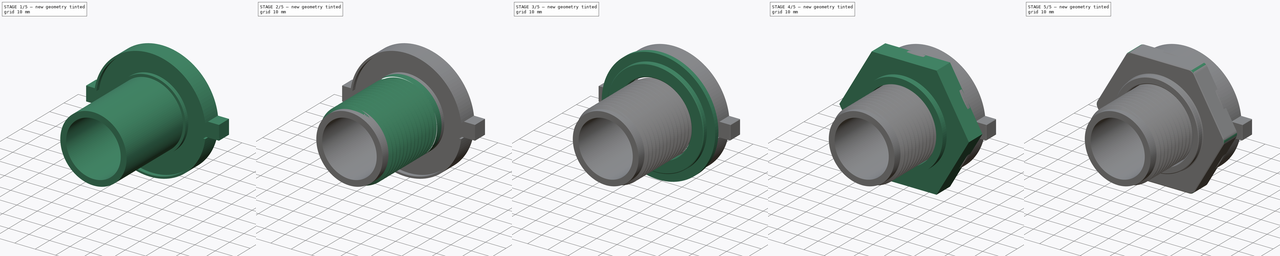
[diagram: build sequence overview — one tinted view per stage of 5, left to right]
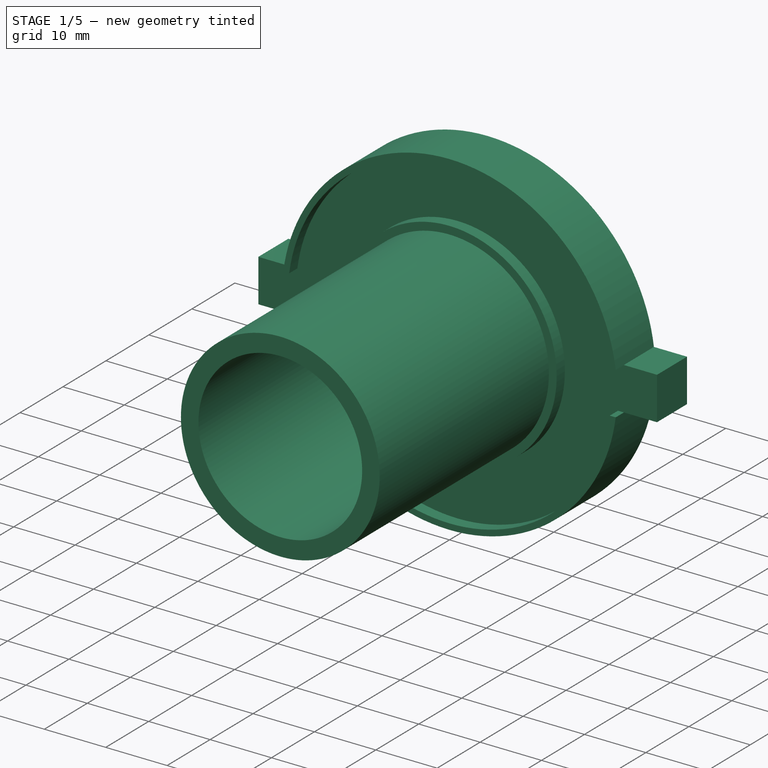
[diagram: stage 1 of 5 — iso view after this stage's code; geometry added in this stage tinted green]
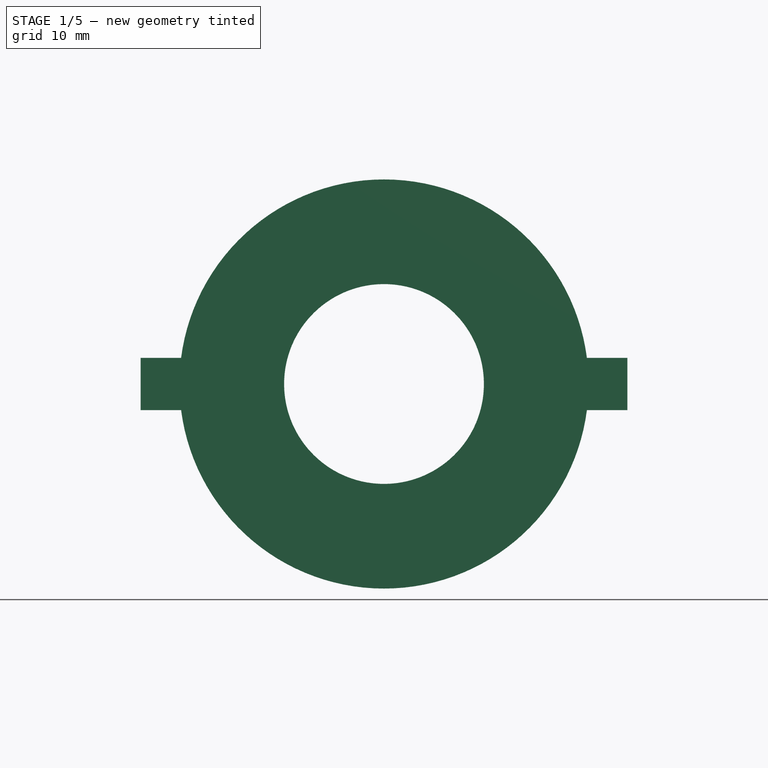
[diagram: stage 1 of 5 — front view after this stage's code; geometry added in this stage tinted green]
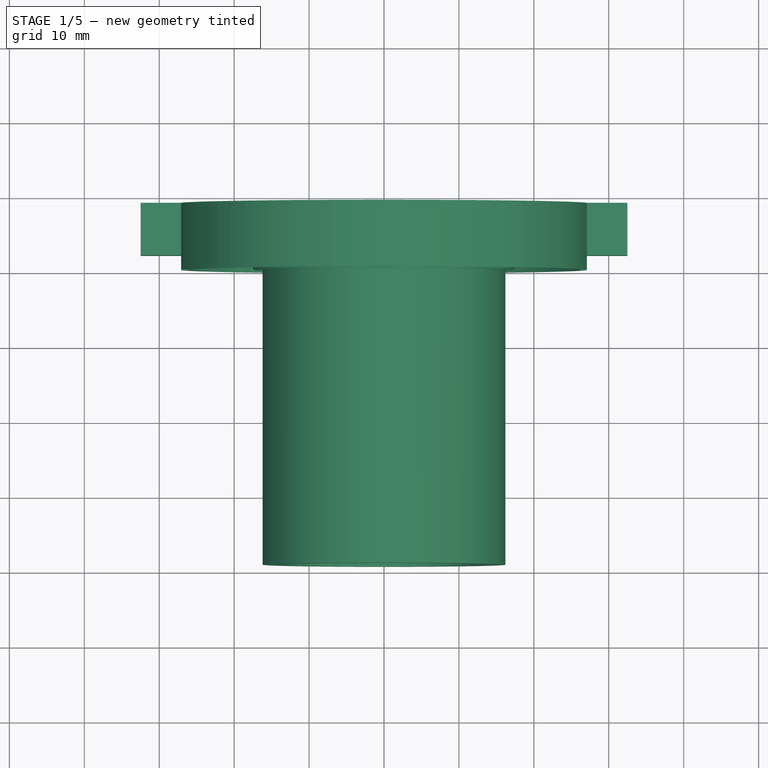
[diagram: stage 1 of 5 — top view after this stage's code; geometry added in this stage tinted green]
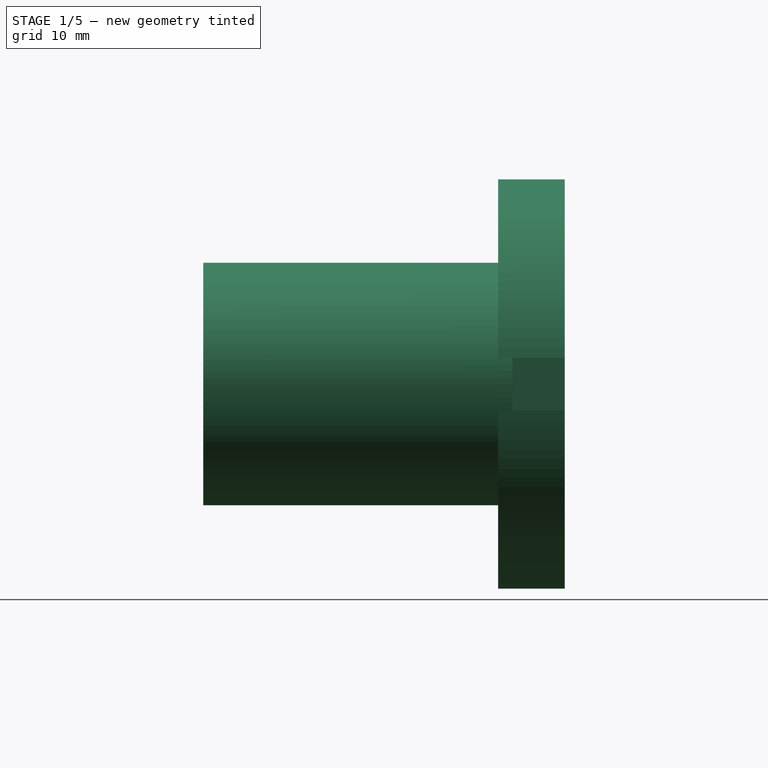
[diagram: stage 1 of 5 — right view after this stage's code; geometry added in this stage tinted green]
FCSTD DOCUMENT  (FreeCAD 0.20RUnknown)
Label: bulkhead-fitting
License: All rights reserved
LicenseURL: http://en.wikipedia.org/wiki/All_rights_reserved
objects: Sketcher::SketchObject×9, PartDesign::Pad×7, PartDesign::Chamfer×4, PartDesign::Body×4, PartDesign::AdditiveHelix×2, PartDesign::Pocket×1, PartDesign::Revolution×1, PartDesign::Fillet×1, App::Part×1
note: 45 computed .brp shape members not serialized (recipe doc carries the construction recipe); baked Part::Feature solids carry a one-line shape summary decoded from their .brp

FEATURE [Sketcher::SketchObject] Sketch
  FullyConstrained = true
  MapMode = 5
  Placement = pos=(0,0,0) rot=(1,0,0;1.5708rad)
  Support = -> [XZ_Plane]
  sketch-geometry (2):
    g0: Circle CenterX=0 CenterY=0 CenterZ=0 NormalX=0 NormalY=0 NormalZ=1 AngleXU=0 Radius=16.1925
    g1: Circle CenterX=0 CenterY=0 CenterZ=0 NormalX=0 NormalY=0 NormalZ=1 AngleXU=0 Radius=13.335
  constraints (4):
    c: Coincident(g0,g-1)
    c: Coincident(g1,g0)
    c: Diameter(g1) = 26.67
    c: Diameter(g0) = 32.385
FEATURE [PartDesign::Pad] Pad
  Direction = (0,-1,2e-16)
  Length = 39.37
  Length2 = 10
  Placement = pos=(0,0,0) rot=(1,0,0;1.5708rad)
  Profile = -> Sketch
  ReferenceAxis = -> Sketch [N_Axis]
  Type = 0
FEATURE [Sketcher::SketchObject] Sketch001
  FullyConstrained = true
  MapMode = 5
  Placement = pos=(0,0,0) rot=(-1,0,0;1.5708rad)
  Support = -> [Pad]
  sketch-geometry (14):
    g0: Circle CenterX=0 CenterY=0 CenterZ=0 NormalX=0 NormalY=0 NormalZ=1 AngleXU=0 Radius=27.305
    g1: Circle CenterX=0 CenterY=0 CenterZ=0 NormalX=0 NormalY=0 NormalZ=1 AngleXU=0 Radius=13.335
    g2: LineSegment StartX=27.0807 StartY=3.4925 StartZ=0 EndX=27.0807 EndY=-3.4925 EndZ=0
    g3: LineSegment StartX=27.0807 StartY=-3.4925 StartZ=0 EndX=32.4782 EndY=-3.4925 EndZ=0
    g4: LineSegment StartX=32.4782 StartY=-3.4925 StartZ=0 EndX=32.4782 EndY=3.4925 EndZ=0
    g5: LineSegment StartX=32.4782 StartY=3.4925 StartZ=0 EndX=27.0807 EndY=3.4925 EndZ=0
    g6: GeomPoint X=29.7795 Y=-8e-16 Z=0
    g7: LineSegment StartX=-27.0807 StartY=3.4925 StartZ=0 EndX=-27.0807 EndY=-3.4925 EndZ=0
    g8: LineSegment StartX=-27.0807 StartY=-3.4925 StartZ=0 EndX=-32.4782 EndY=-3.4925 EndZ=0
    g9: LineSegment StartX=-32.4782 StartY=-3.4925 StartZ=0 EndX=-32.4782 EndY=3.4925 EndZ=0
    g10: LineSegment StartX=-32.4782 StartY=3.4925 StartZ=0 EndX=-27.0807 EndY=3.4925 EndZ=0
    g11: GeomPoint X=-29.7795 Y=-4.7e-15 Z=0
    g12: ArcOfCircle CenterX=0 CenterY=0 CenterZ=0 NormalX=0 NormalY=0 NormalZ=1 AngleXU=0 Radius=27.305 StartAngle=0.128258 EndAngle=3.01333
    g13: ArcOfCircle CenterX=0 CenterY=0 CenterZ=0 NormalX=0 NormalY=0 NormalZ=1 AngleXU=0 Radius=27.305 StartAngle=3.26985 EndAngle=6.15493
  constraints (34):
    c: Coincident(g0,g-1)
    c: Diameter(g0) = 54.61
    c: Coincident(g1,g0)
    c: Diameter(g1) = 26.67
    c: Coincident(g2,g3)
    c: Coincident(g3,g4)
    c: Coincident(g4,g5)
    c: Coincident(g5,g2)
    c: Horizontal(g3)
    c: Horizontal(g5)
    c: Vertical(g2)
    c: Vertical(g4)
    c: Symmetric(g3,g2,g6)
    c: Coincident(g7,g8)
    c: Coincident(g8,g9)
    c: Coincident(g9,g10)
    c: Coincident(g10,g7)
    c: Horizontal(g8)
    c: Horizontal(g10)
    c: Vertical(g7)
    c: Vertical(g9)
    c: Symmetric(g8,g7,g11)
    c: Equal(g3,g8)
    c: Equal(g4,g7)
    c: Coincident(g12,g1)
    c: Coincident(g13,g1)
    c: Equal(g0,g12)
    c: Equal(g0,g13)
    c: Coincident(g12,g10)
    c: Coincident(g8,g13)
    c: Coincident(g5,g12)
    c: Coincident(g3,g13)
    c: DistanceY(g9,g9) = 6.985
    c: DistanceX(g8,g8) = 5.3975
FEATURE [PartDesign::Pad] Pad001
  BaseFeature = -> Pad
  Direction = (0,1,-2e-16)
  Length = 8.89
  Length2 = 10
  Placement = pos=(0,0,0) rot=(1,0,0;1.5708rad)
  Profile = -> Sketch001
  ReferenceAxis = -> Sketch001 [N_Axis]
  Type = 0
FEATURE [Sketcher::SketchObject] Sketch002
  FullyConstrained = true
  MapMode = 5
  Placement = pos=(0,0,0) rot=(1,0,0;1.5708rad)
  Support = -> [Pad001]
  sketch-geometry (14):
    g0: Circle CenterX=0 CenterY=0 CenterZ=0 NormalX=0 NormalY=0 NormalZ=1 AngleXU=0 Radius=17.4625
    g1: Circle CenterX=0 CenterY=0 CenterZ=0 NormalX=0 NormalY=0 NormalZ=1 AngleXU=0 Radius=26.3525
    g2: LineSegment StartX=26.12 StartY=3.4925 StartZ=0 EndX=26.12 EndY=-3.4925 EndZ=0
    g3: LineSegment StartX=26.12 StartY=-3.4925 StartZ=0 EndX=38.82 EndY=-3.4925 EndZ=0
    g4: LineSegment StartX=38.82 StartY=-3.4925 StartZ=0 EndX=38.82 EndY=3.4925 EndZ=0
    g5: LineSegment StartX=38.82 StartY=3.4925 StartZ=0 EndX=26.12 EndY=3.4925 EndZ=0
    g6: GeomPoint X=32.47 Y=0 Z=0
    g7: LineSegment StartX=-26.12 StartY=3.4925 StartZ=0 EndX=-26.12 EndY=-3.4925 EndZ=0
    g8: LineSegment StartX=-26.12 StartY=-3.4925 StartZ=0 EndX=-38.82 EndY=-3.4925 EndZ=0
    g9: LineSegment StartX=-38.82 StartY=-3.4925 StartZ=0 EndX=-38.82 EndY=3.4925 EndZ=0
    g10: LineSegment StartX=-38.82 StartY=3.4925 StartZ=0 EndX=-26.12 EndY=3.4925 EndZ=0
    g11: GeomPoint X=-32.47 Y=-7.7e-15 Z=0
    g12: ArcOfCircle CenterX=0 CenterY=0 CenterZ=0 NormalX=0 NormalY=0 NormalZ=1 AngleXU=0 Radius=26.3525 StartAngle=0.132921 EndAngle=3.00867
    g13: ArcOfCircle CenterX=0 CenterY=0 CenterZ=0 NormalX=0 NormalY=0 NormalZ=1 AngleXU=0 Radius=26.3525 StartAngle=3.27451 EndAngle=6.15026
  constraints (34):
    c: Coincident(g0,g-1)
    c: Coincident(g1,g0)
    c: Diameter(g0) = 34.925
    c: Diameter(g1) = 52.705
    c: Coincident(g2,g3)
    c: Coincident(g3,g4)
    c: Coincident(g4,g5)
    c: Coincident(g5,g2)
    c: Horizontal(g3)
    c: Horizontal(g5)
    c: Vertical(g2)
    c: Vertical(g4)
    c: Symmetric(g3,g2,g6)
    c: PointOnObject(g6,g-1)
    c: Coincident(g7,g8)
    c: Coincident(g8,g9)
    c: Coincident(g9,g10)
    c: Coincident(g10,g7)
    c: Horizontal(g8)
    c: Horizontal(g10)
    c: Vertical(g7)
    c: Vertical(g9)
    c: Symmetric(g8,g7,g11)
    c: Equal(g3,g8)
    c: Equal(g7,g4)
    c: Coincident(g12,g0)
    c: Coincident(g12,g7)
    c: Coincident(g12,g2)
    c: Coincident(g13,g0)
    c: Coincident(g13,g2)
    c: Coincident(g13,g7)
    c: Equal(g1,g12)
    c: DistanceX(g3,g3) = 12.7
    c: DistanceY(g4,g4) = 6.985
FEATURE [PartDesign::Pocket] Pocket
  BaseFeature = -> Pad001
  Direction = (0,1,-2e-16)
  Length = 1.905
  Length2 = 5
  Placement = pos=(0,0,0) rot=(1,0,0;1.5708rad)
  Profile = -> Sketch002
  ReferenceAxis = -> Sketch002 [N_Axis]
  Type = 0
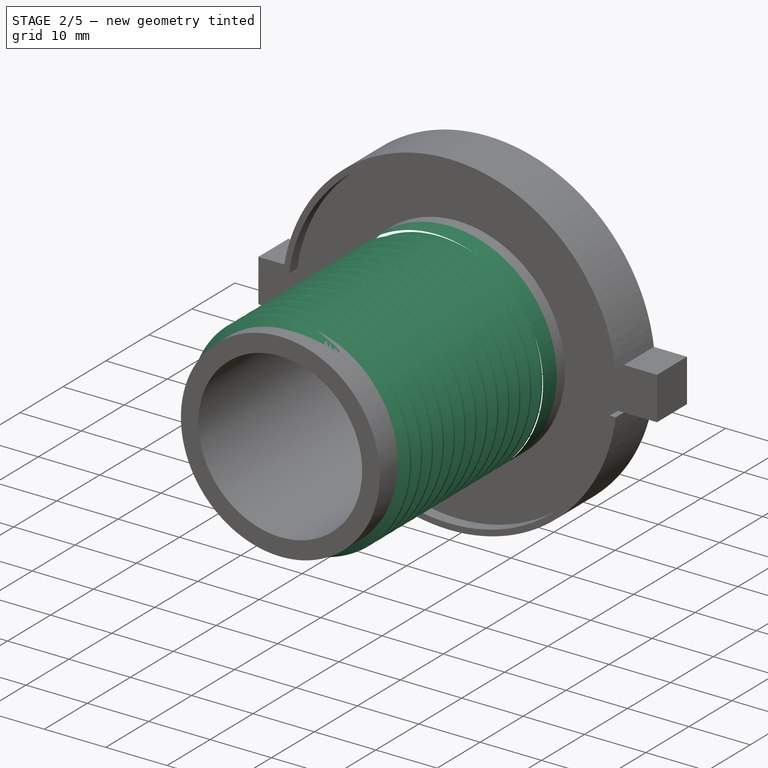
[diagram: stage 2 of 5 — iso view after this stage's code; geometry added in this stage tinted green]
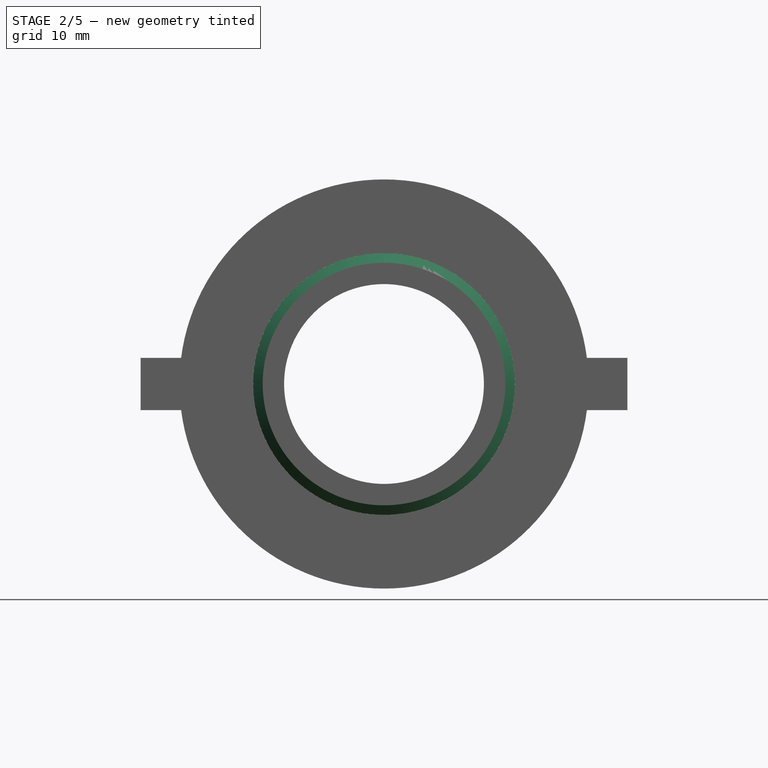
[diagram: stage 2 of 5 — front view after this stage's code; geometry added in this stage tinted green]
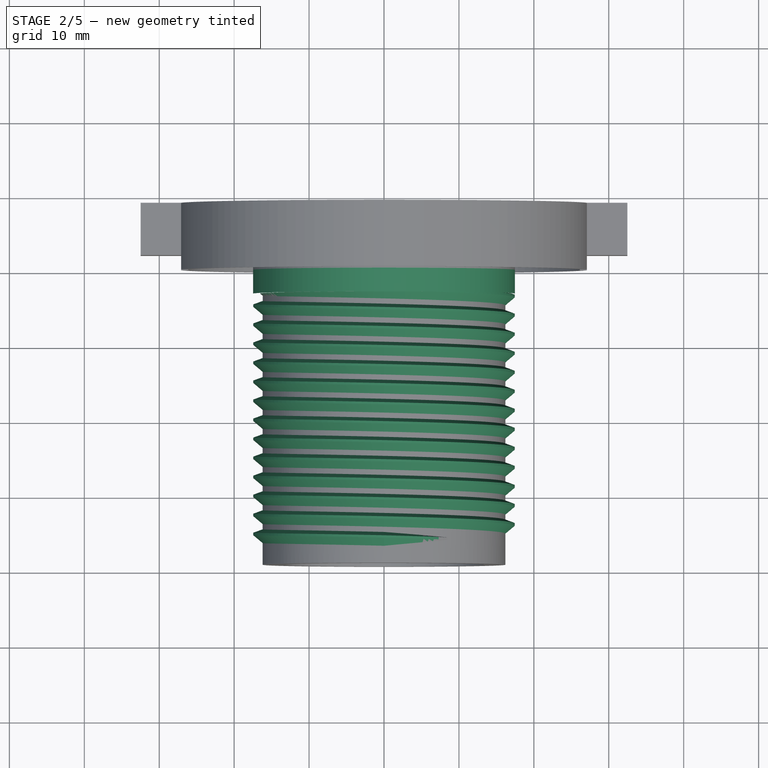
[diagram: stage 2 of 5 — top view after this stage's code; geometry added in this stage tinted green]
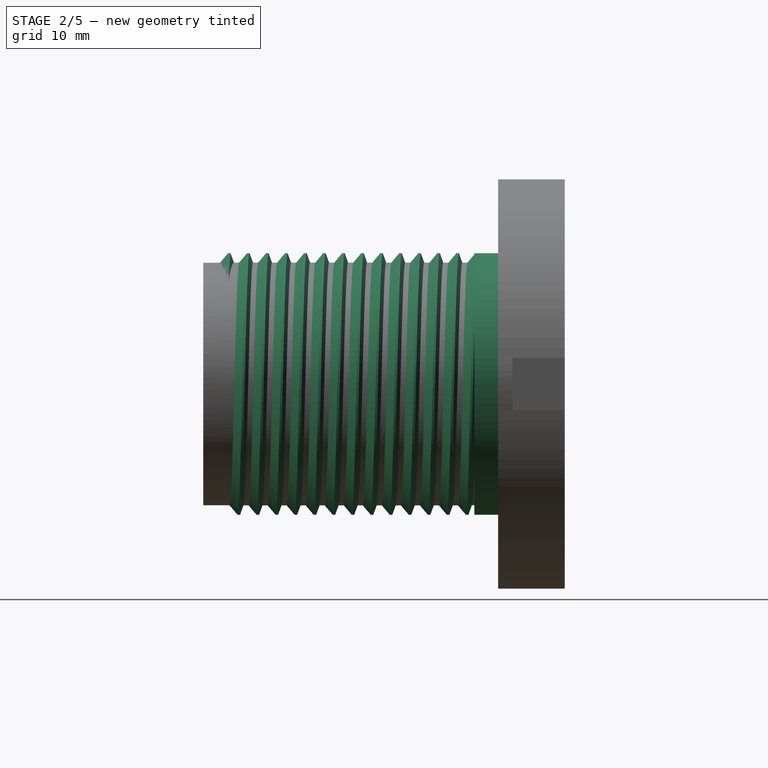
[diagram: stage 2 of 5 — right view after this stage's code; geometry added in this stage tinted green]
FEATURE [PartDesign::Pad] Pad002
  BaseFeature = -> Pocket
  Direction = (0,-1,2e-16)
  Length = 3.175
  Length2 = 10
  Placement = pos=(0,0,0) rot=(1,0,0;1.5708rad)
  Profile = -> Pocket [Face2]
  Type = 0
FEATURE [Sketcher::SketchObject] Sketch003
  AttachmentOffset = pos=(-36.195,0,0) rot=(0,0,1;0rad)
  FullyConstrained = true
  MapMode = 5
  Placement = pos=(-8e-15,-36.195,8e-15) rot=(0.57735,0.57735,0.57735;2.0944rad)
  Support = -> [YZ_Plane]
  sketch-geometry (5):
    g0: LineSegment StartX=-0.922699 StartY=16.19 StartZ=0 EndX=0.142957 EndY=17.46 EndZ=0
    g1: LineSegment StartX=0.142957 StartY=17.46 StartZ=0 EndX=0.460457 EndY=17.46 EndZ=0
    g2: LineSegment StartX=0.460457 StartY=17.46 StartZ=0 EndX=0.922699 EndY=16.19 EndZ=0
    g3: LineSegment StartX=-0.922699 StartY=16.19 StartZ=0 EndX=0.922699 EndY=16.19 EndZ=0
    g4: GeomPoint X=0 Y=16.19 Z=0
  constraints (13):
    c: Coincident(g1,g0)
    c: Horizontal(g1)
    c: Coincident(g2,g1)
    c: Coincident(g3,g0)
    c: Coincident(g3,g2)
    c: Horizontal(g3)
    c: DistanceY(g0,g0) = 1.27
    c: DistanceX(g1,g1) = 0.3175
    c: Angle(g3,g0) = 0.872665
    c: Angle(g2,g3) = 1.22173
    c: Symmetric(g3,g3,g4)
    c: PointOnObject(g4,g-2)
    c: DistanceY(g-1,g4) = 16.19
FEATURE [PartDesign::AdditiveHelix] AdditiveHelix
  Angle = 0
  Axis = (3e-16,1,-2e-16)
  Base = (-8e-15,-36.195,8e-15)
  BaseFeature = -> Pad002
  Growth = 0
  HasBeenEdited = true
  Height = 34.29
  LeftHanded = true
  Mode = 0
  Outside = false
  Pitch = 2.54
  Placement = pos=(0,0,0) rot=(1,0,0;1.5708rad)
  Profile = -> Sketch003
  ReferenceAxis = -> Sketch003 [H_Axis]
  Turns = 13.5
FEATURE [PartDesign::AdditiveHelix] AdditiveHelix001
  Angle = -80
  Axis = (1e-16,1,-1e-16)
  Base = (0,0,0)
  BaseFeature = -> AdditiveHelix
  Growth = -14.4051
  HasBeenEdited = true
  Height = 0.3175
  LeftHanded = true
  Mode = 0
  Outside = false
  Pitch = 2.54
  Placement = pos=(0,0,0) rot=(1,0,0;1.5708rad)
  Profile = -> AdditiveHelix [Face76]
  ReferenceAxis = -> Y_Axis
  Reversed = true
  Turns = 0.125
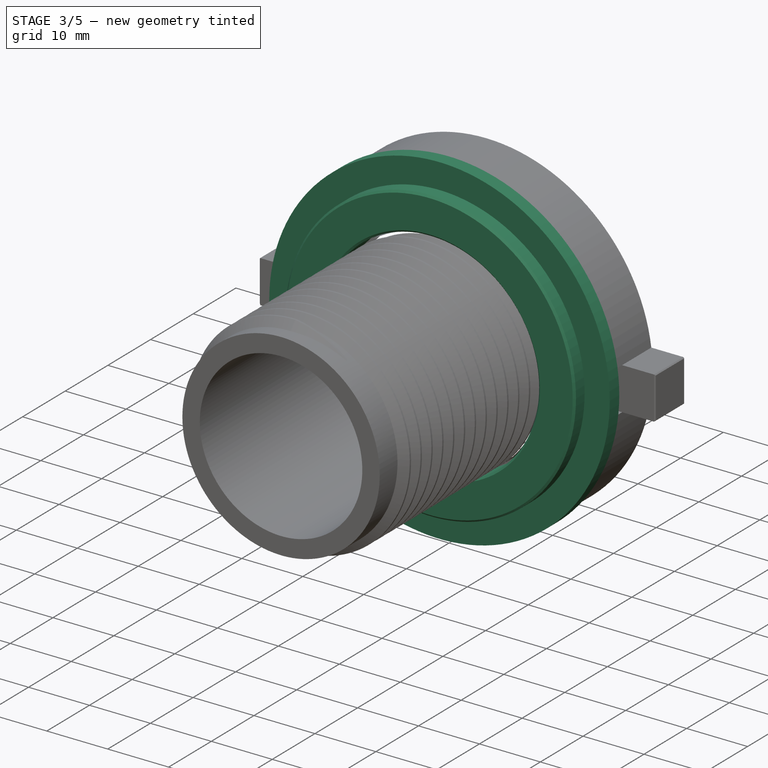
[diagram: stage 3 of 5 — iso view after this stage's code; geometry added in this stage tinted green]
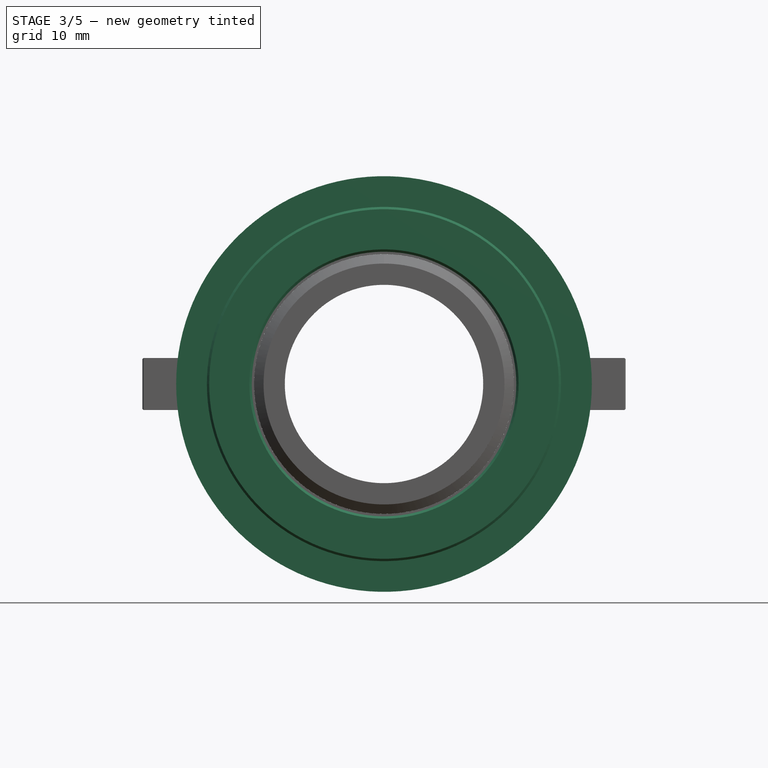
[diagram: stage 3 of 5 — front view after this stage's code; geometry added in this stage tinted green]
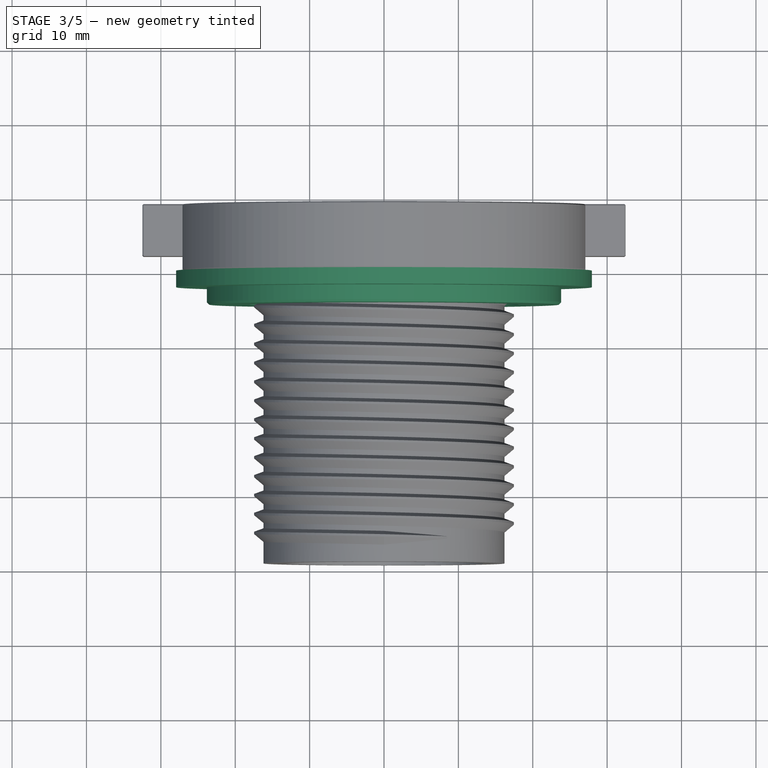
[diagram: stage 3 of 5 — top view after this stage's code; geometry added in this stage tinted green]
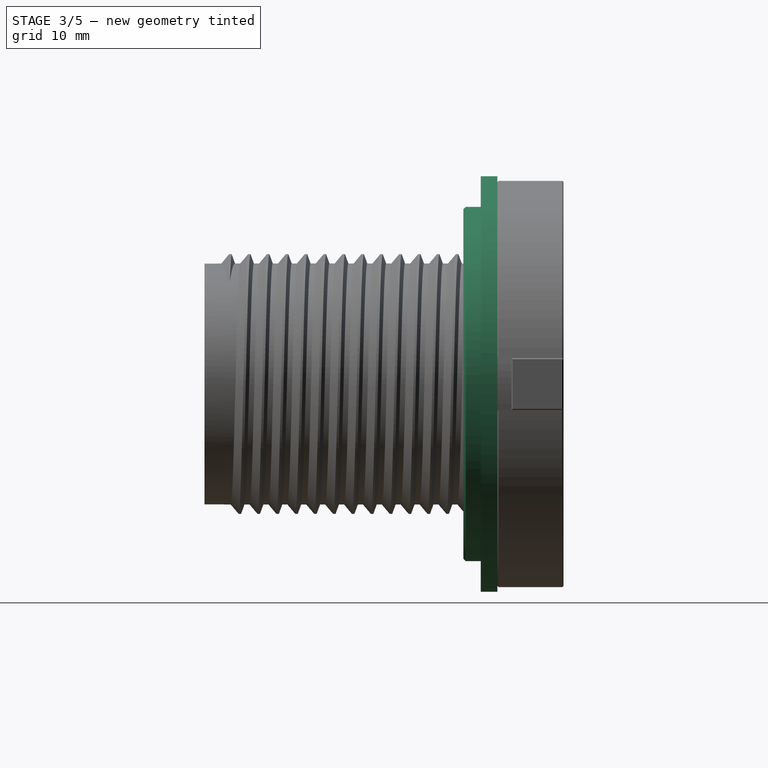
[diagram: stage 3 of 5 — right view after this stage's code; geometry added in this stage tinted green]
FEATURE [PartDesign::Body] Body001  label="nut"
  Group = -> [Sketch004,Pad003,Sketch005,Pad004,Sketch007,Revolution,Fillet,Chamfer]
  Origin = -> Origin001
  Placement = pos=(0,-10.795,0) rot=(0,0,1;0rad)
  Tip = -> Chamfer
FEATURE [Sketcher::SketchObject] Sketch008
  FullyConstrained = true
  MapMode = 5
  Placement = pos=(0,0,0) rot=(1,0,0;1.5708rad)
  Support = -> [XZ_Plane002]
  sketch-geometry (2):
    g0: Circle CenterX=0 CenterY=0 CenterZ=0 NormalX=0 NormalY=0 NormalZ=1 AngleXU=0 Radius=17.78
    g1: Circle CenterX=0 CenterY=0 CenterZ=0 NormalX=0 NormalY=0 NormalZ=1 AngleXU=0 Radius=23.8125
  constraints (4):
    c: Coincident(g0,g-1)
    c: Coincident(g1,g0)
    c: Diameter(g0) = 35.56
    c: Diameter(g1) = 47.625
FEATURE [PartDesign::Pad] Pad005
  Direction = (0,-1,2e-16)
  Length = 4.572
  Length2 = 10
  Placement = pos=(0,0,0) rot=(1,0,0;1.5708rad)
  Profile = -> Sketch008
  ReferenceAxis = -> Sketch008 [N_Axis]
  Type = 0
FEATURE [Sketcher::SketchObject] Sketch009
  FullyConstrained = true
  MapMode = 5
  Placement = pos=(0,0,0) rot=(1,0,0;1.5708rad)
  Support = -> [XZ_Plane003]
  sketch-geometry (2):
    g0: Circle CenterX=0 CenterY=0 CenterZ=0 NormalX=0 NormalY=0 NormalZ=1 AngleXU=0 Radius=17.8435
    g1: Circle CenterX=0 CenterY=0 CenterZ=0 NormalX=0 NormalY=0 NormalZ=1 AngleXU=0 Radius=27.94
  constraints (4):
    c: Coincident(g0,g-1)
    c: Coincident(g1,g0)
    c: Diameter(g0) = 35.687
    c: Diameter(g1) = 55.88
FEATURE [PartDesign::Pad] Pad006
  Direction = (0,-1,2e-16)
  Length = 2.2352
  Length2 = 10
  Placement = pos=(0,0,0) rot=(1,0,0;1.5708rad)
  Profile = -> Sketch009
  ReferenceAxis = -> Sketch009 [N_Axis]
  Type = 0
FEATURE [PartDesign::Body] Body003  label="washer"
  Group = -> [Sketch009,Pad006,Chamfer001]
  Origin = -> Origin003
  Placement = pos=(0,-0.127,0) rot=(0,0,1;0rad)
  Tip = -> Chamfer001
FEATURE [PartDesign::Chamfer] Chamfer002
  Angle = 45
  Base = -> Pad005 [Face4,Face3]
  BaseFeature = -> Pad005
  ChamferType = 0
  FlipDirection = false
  Placement = pos=(0,0,0) rot=(1,0,0;1.5708rad)
  Size = 0.3175
  Size2 = 1
  SupportTransform = false
  UseAllEdges = false
FEATURE [PartDesign::Body] Body002  label="seal"
  Group = -> [Sketch008,Pad005,Chamfer002]
  Origin = -> Origin002
  Placement = pos=(0,-2.4892,0) rot=(0,0,1;0rad)
  Tip = -> Chamfer002
FEATURE [PartDesign::Chamfer] Chamfer003
  Angle = 45
  Base = -> AdditiveHelix001 [Face48,Face52,Edge78,Edge114,Edge116,Edge130,Edge111,Edge131,Edge110,Edge113,Edge100,Edge101,Edge99,Edge98,Edge72,Edge97]
  BaseFeature = -> AdditiveHelix001
  ChamferType = 0
  FlipDirection = false
  Placement = pos=(0,0,0) rot=(1,0,0;1.5708rad)
  Size = 0.15875
  Size2 = 1
  SupportTransform = false
  UseAllEdges = false
FEATURE [PartDesign::Body] Body  label="flange"
  Group = -> [Sketch,Pad,Sketch001,Pad001,Sketch002,Pocket,Pad002,Sketch003,AdditiveHelix,AdditiveHelix001,Chamfer003]
  Origin = -> Origin
  Tip = -> Chamfer003
FEATURE [App::Part] Part  label="assy"
  Group = -> [Body,Body001,Body002,Body003]
  Origin = -> Origin004
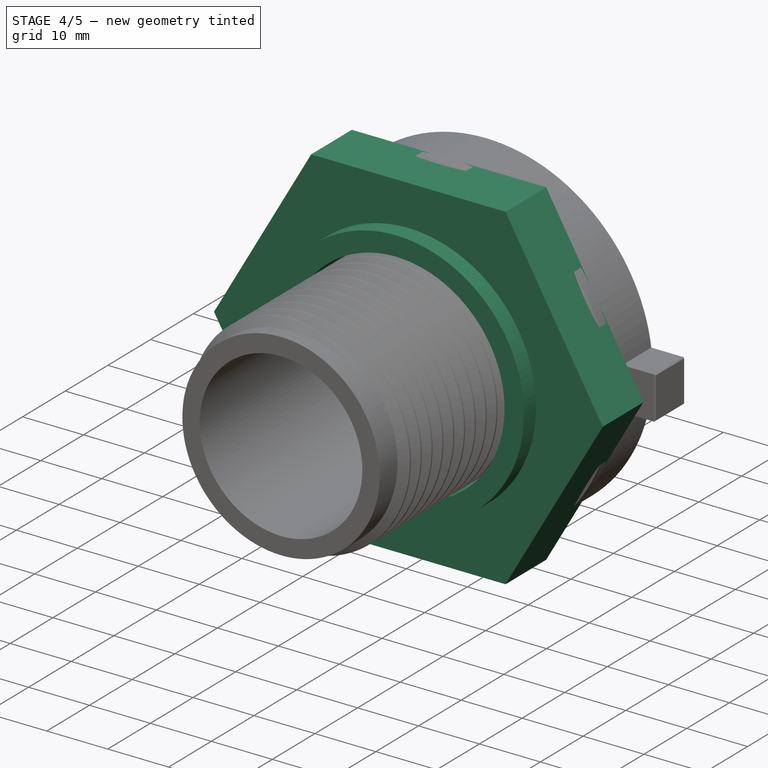
[diagram: stage 4 of 5 — iso view after this stage's code; geometry added in this stage tinted green]
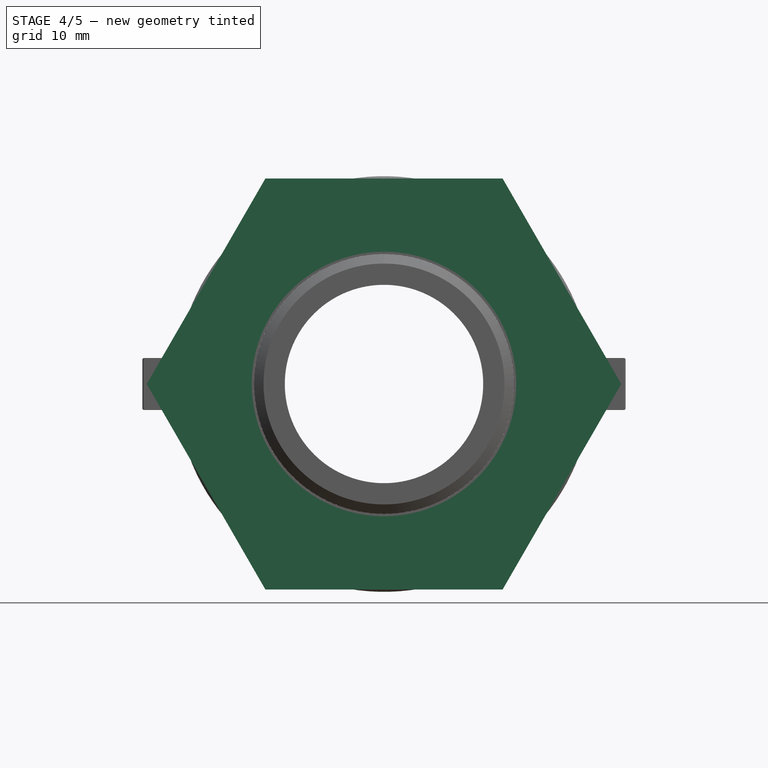
[diagram: stage 4 of 5 — front view after this stage's code; geometry added in this stage tinted green]
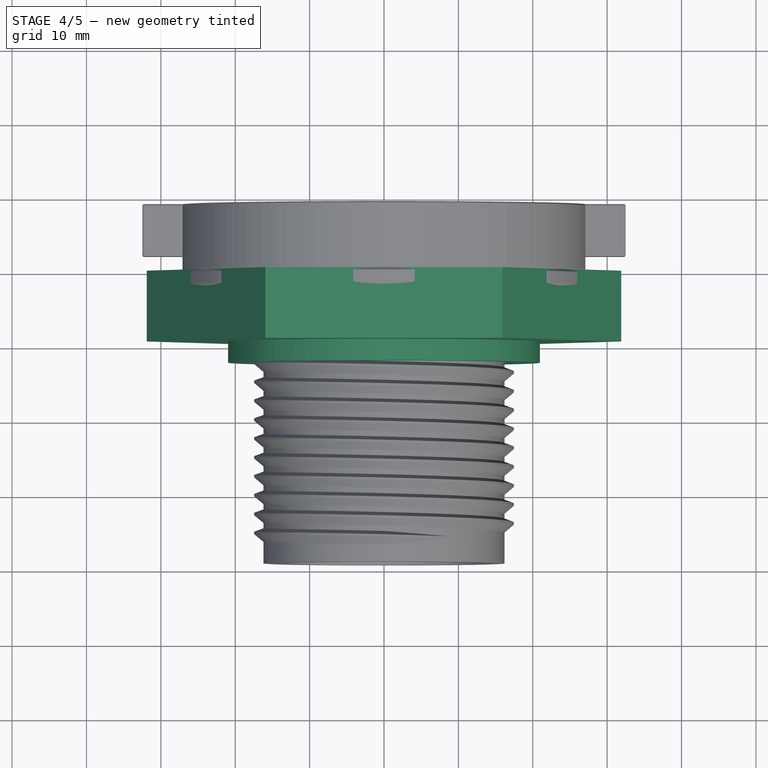
[diagram: stage 4 of 5 — top view after this stage's code; geometry added in this stage tinted green]
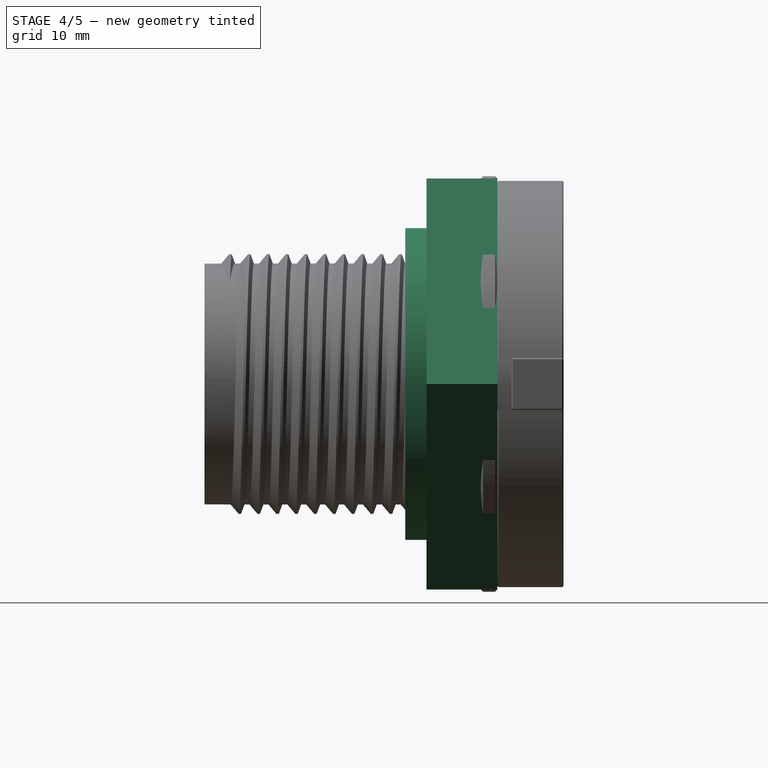
[diagram: stage 4 of 5 — right view after this stage's code; geometry added in this stage tinted green]
FEATURE [Sketcher::SketchObject] Sketch004
  FullyConstrained = true
  MapMode = 5
  Placement = pos=(0,0,0) rot=(1,0,0;1.5708rad)
  Support = -> [XZ_Plane001]
  sketch-geometry (8):
    g0: Circle CenterX=0 CenterY=0 CenterZ=0 NormalX=0 NormalY=0 NormalZ=1 AngleXU=0 Radius=17.78
    g1: LineSegment StartX=31.8957 StartY=0 StartZ=0 EndX=15.9479 EndY=27.6225 EndZ=0
    g2: LineSegment StartX=15.9479 StartY=27.6225 StartZ=0 EndX=-15.9479 EndY=27.6225 EndZ=0
    g3: LineSegment StartX=-15.9479 StartY=27.6225 StartZ=0 EndX=-31.8957 EndY=-2.224e-12 EndZ=0
    g4: LineSegment StartX=-31.8957 StartY=-2.2236e-12 StartZ=0 EndX=-15.9479 EndY=-27.6225 EndZ=0
    g5: LineSegment StartX=-15.9479 StartY=-27.6225 StartZ=0 EndX=15.9479 EndY=-27.6225 EndZ=0
    g6: LineSegment StartX=15.9479 StartY=-27.6225 StartZ=0 EndX=31.8957 EndY=0 EndZ=0
    g7: Circle CenterX=0 CenterY=0 CenterZ=0 NormalX=0 NormalY=0 NormalZ=1 AngleXU=0 Radius=31.8957
  constraints (18):
    c: Coincident(g0,g-1)
    c: Diameter(g0) = 35.56
    c: Coincident(g1,g2)
    c: Coincident(g2,g3)
    c: Coincident(g3,g4)
    c: Coincident(g4,g5)
    c: Coincident(g5,g6)
    c: Coincident(g6,g1)
    c: Equal(g1, g2-g6) x5
    c: PointOnObject(g1,g7)
    c: PointOnObject(g2,g7)
    c: PointOnObject(g3,g7)
    c: PointOnObject(g4,g7)
    c: PointOnObject(g5,g7)
    c: PointOnObject(g6,g7)
    c: Coincident(g7,g0)
    c: PointOnObject(g6,g-1)
    c: Distance(g4,g1) = 55.245
FEATURE [PartDesign::Pad] Pad003
  Direction = (0,-1,2e-16)
  Length = 9.525
  Length2 = 10
  Placement = pos=(0,0,0) rot=(1,0,0;1.5708rad)
  Profile = -> Sketch004
  ReferenceAxis = -> Sketch004 [N_Axis]
  Type = 0
FEATURE [Sketcher::SketchObject] Sketch005
  FullyConstrained = true
  MapMode = 5
  Placement = pos=(0,-9.525,2.1e-15) rot=(1,0,0;1.5708rad)
  Support = -> [Pad003]
  sketch-geometry (2):
    g0: Circle CenterX=0 CenterY=0 CenterZ=0 NormalX=0 NormalY=0 NormalZ=1 AngleXU=0 Radius=17.78
    g1: Circle CenterX=0 CenterY=0 CenterZ=0 NormalX=0 NormalY=0 NormalZ=1 AngleXU=0 Radius=20.955
  constraints (4):
    c: Coincident(g0,g-1)
    c: Coincident(g1,g0)
    c: Diameter(g1) = 41.91
    c: Diameter(g0) = 35.56
FEATURE [PartDesign::Pad] Pad004
  BaseFeature = -> Pad003
  Direction = (0,-1,2e-16)
  Length = 2.8575
  Length2 = 10
  Placement = pos=(0,0,0) rot=(1,0,0;1.5708rad)
  Profile = -> Sketch005
  ReferenceAxis = -> Sketch005 [N_Axis]
  Type = 0
FEATURE [PartDesign::Chamfer] Chamfer001
  Angle = 45
  Base = -> Pad006 [Face3,Face4]
  BaseFeature = -> Pad006
  ChamferType = 0
  FlipDirection = false
  Placement = pos=(0,0,0) rot=(1,0,0;1.5708rad)
  Size = 0.3175
  Size2 = 1
  SupportTransform = false
  UseAllEdges = false
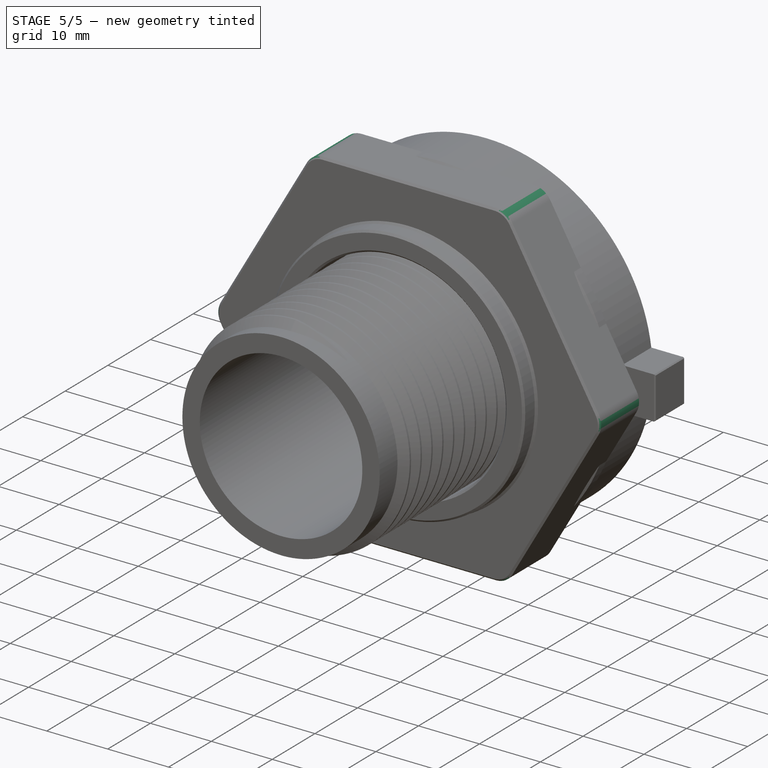
[diagram: stage 5 of 5 — iso view after this stage's code; geometry added in this stage tinted green]
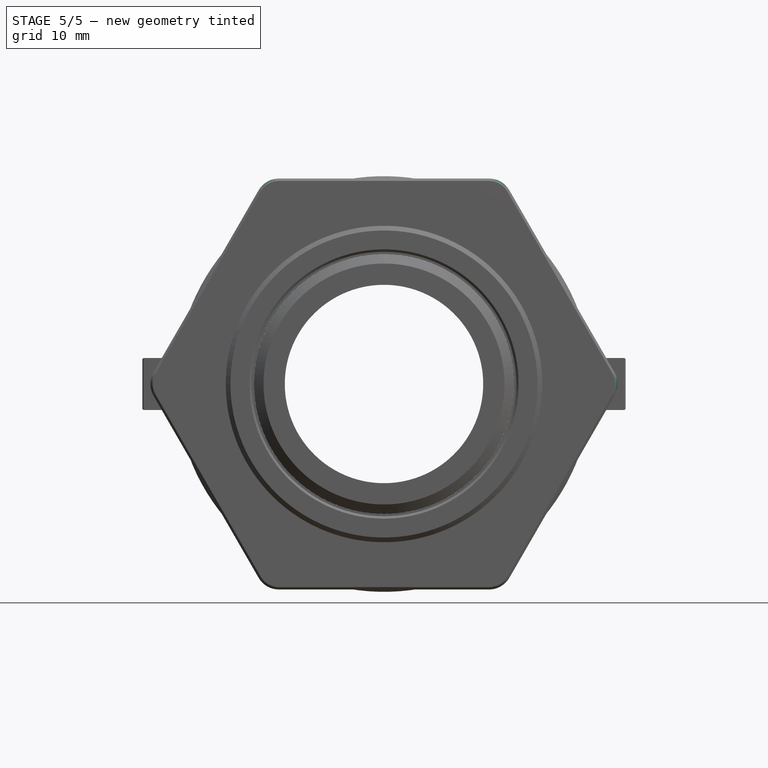
[diagram: stage 5 of 5 — front view after this stage's code; geometry added in this stage tinted green]
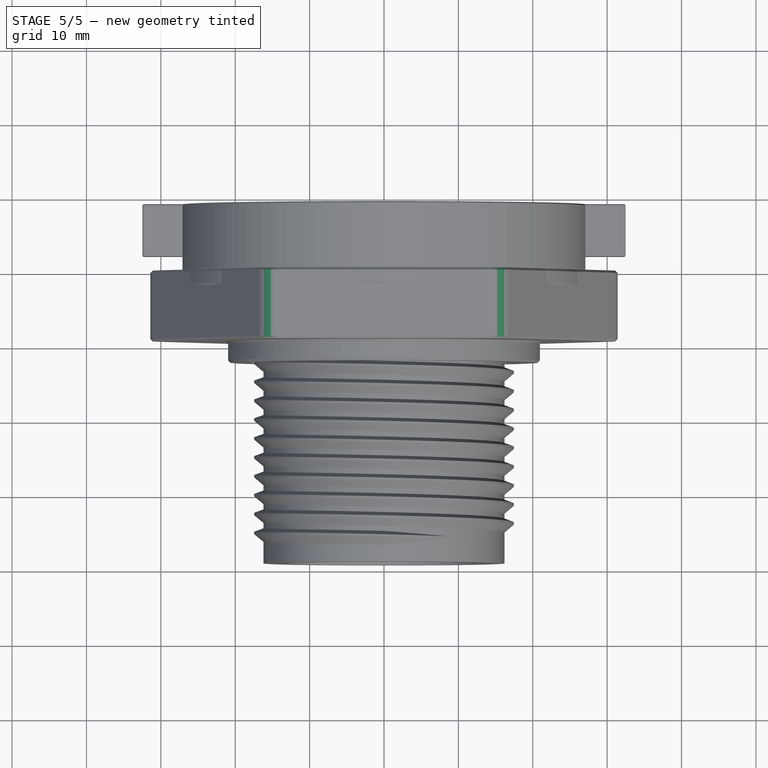
[diagram: stage 5 of 5 — top view after this stage's code; geometry added in this stage tinted green]
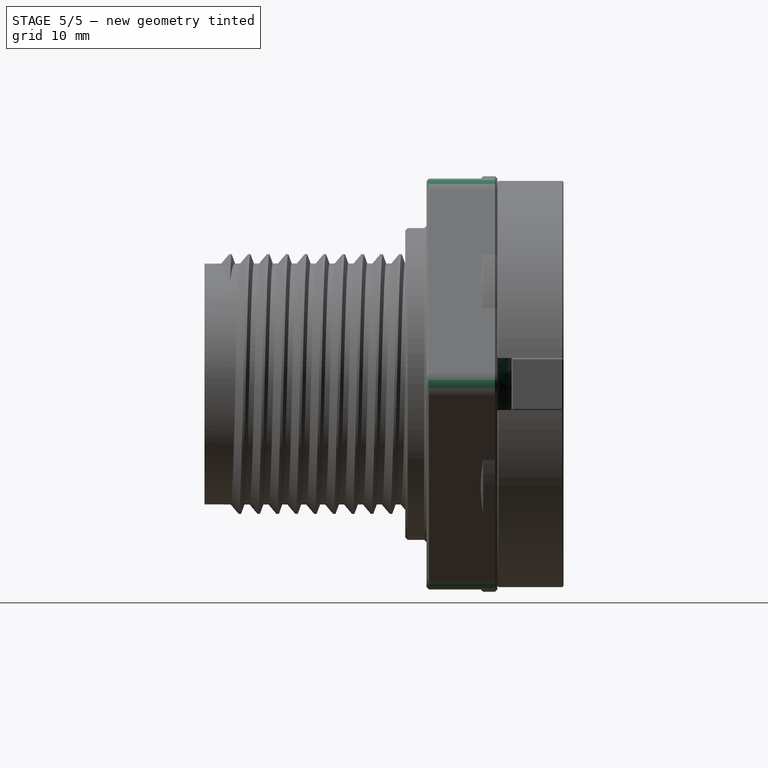
[diagram: stage 5 of 5 — right view after this stage's code; geometry added in this stage tinted green]
FEATURE [Sketcher::SketchObject] Sketch007
  FullyConstrained = true
  MapMode = 5
  Placement = pos=(0,0,0) rot=(0.57735,0.57735,0.57735;2.0944rad)
  Support = -> [YZ_Plane001]
  sketch-geometry (4):
    g0: LineSegment StartX=0 StartY=22.86 StartZ=0 EndX=2.8575 EndY=20.32 EndZ=0
    g1: LineSegment StartX=2.8575 StartY=20.32 StartZ=0 EndX=2.8575 EndY=17.78 EndZ=0
    g2: LineSegment StartX=2.8575 StartY=17.78 StartZ=0 EndX=0 EndY=17.78 EndZ=0
    g3: LineSegment StartX=0 StartY=17.78 StartZ=0 EndX=0 EndY=22.86 EndZ=0
  constraints (12):
    c: PointOnObject(g0,g-2)
    c: Coincident(g1,g0)
    c: PointOnObject(g2,g-2)
    c: Horizontal(g2)
    c: Coincident(g3,g2)
    c: Coincident(g3,g0)
    c: DistanceY(g-1,g2) = 17.78
    c: Vertical(g1)
    c: DistanceY(g1,g1) = 2.54
    c: Coincident(g2,g1)
    c: DistanceY(g3,g3) = 5.08
    c: DistanceX(g2,g2) = 2.8575
FEATURE [PartDesign::Revolution] Revolution
  Angle = 360
  Axis = (3e-16,1,-2e-16)
  Base = (0,0,0)
  BaseFeature = -> Pad004
  Placement = pos=(0,0,0) rot=(1,0,0;1.5708rad)
  Profile = -> Sketch007
  ReferenceAxis = -> Sketch007 [H_Axis]
FEATURE [PartDesign::Fillet] Fillet
  Base = -> Revolution [Edge19,Edge5,Edge20,Edge8,Edge2,Edge1]
  BaseFeature = -> Revolution
  Placement = pos=(0,0,0) rot=(1,0,0;1.5708rad)
  Radius = 3.175
  SupportTransform = false
  UseAllEdges = false
FEATURE [PartDesign::Chamfer] Chamfer
  Angle = 45
  Base = -> Fillet [Face5,Face18,Face2,Face17]
  BaseFeature = -> Fillet
  ChamferType = 0
  FlipDirection = false
  Placement = pos=(0,0,0) rot=(1,0,0;1.5708rad)
  Size = 0.3175
  Size2 = 1
  SupportTransform = false
  UseAllEdges = false
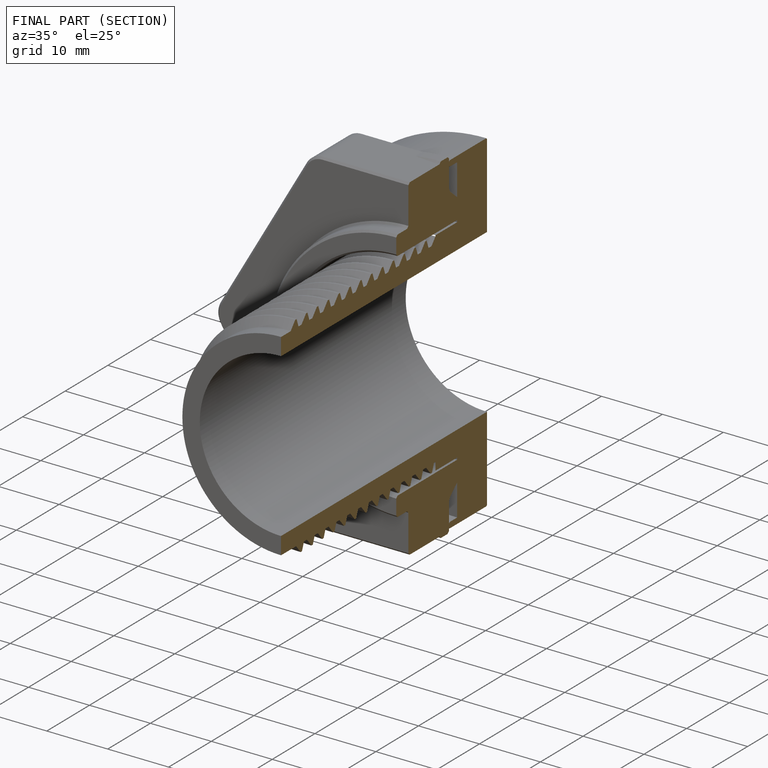
[diagram: finished part — half-section view (interior)]
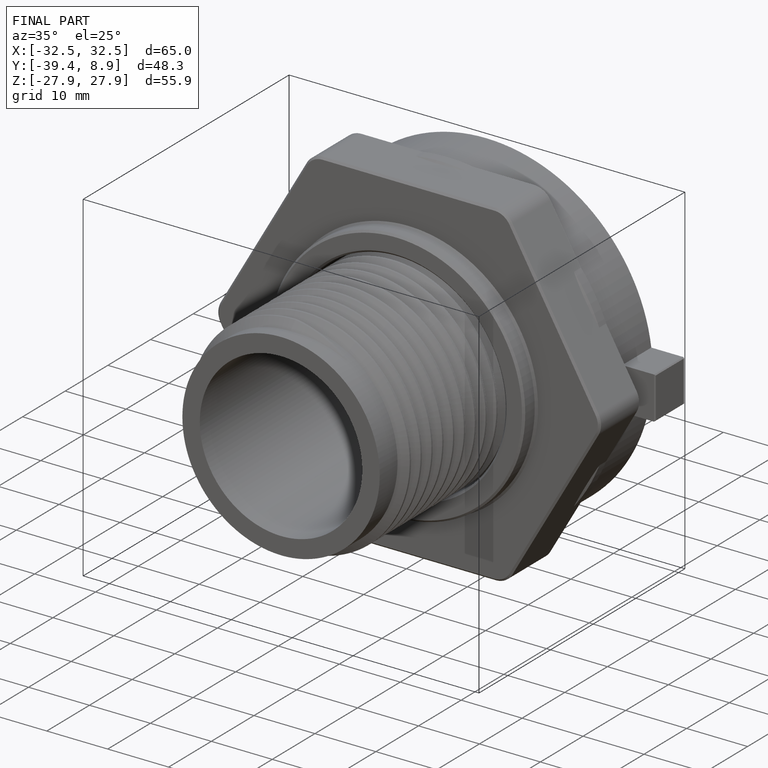
[diagram: finished part — iso view with bounding-box wireframe]
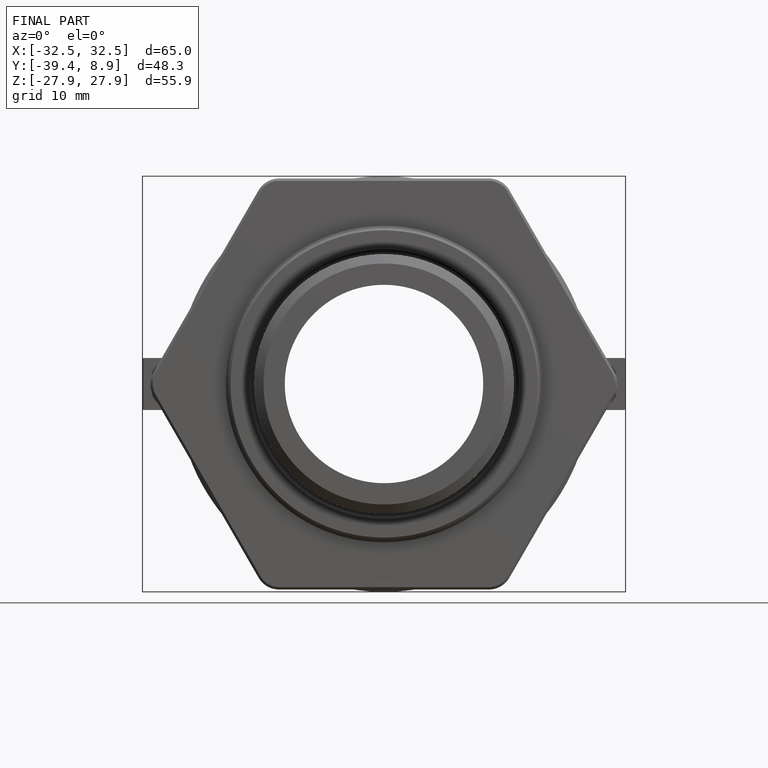
[diagram: finished part — front view with bounding-box wireframe]
